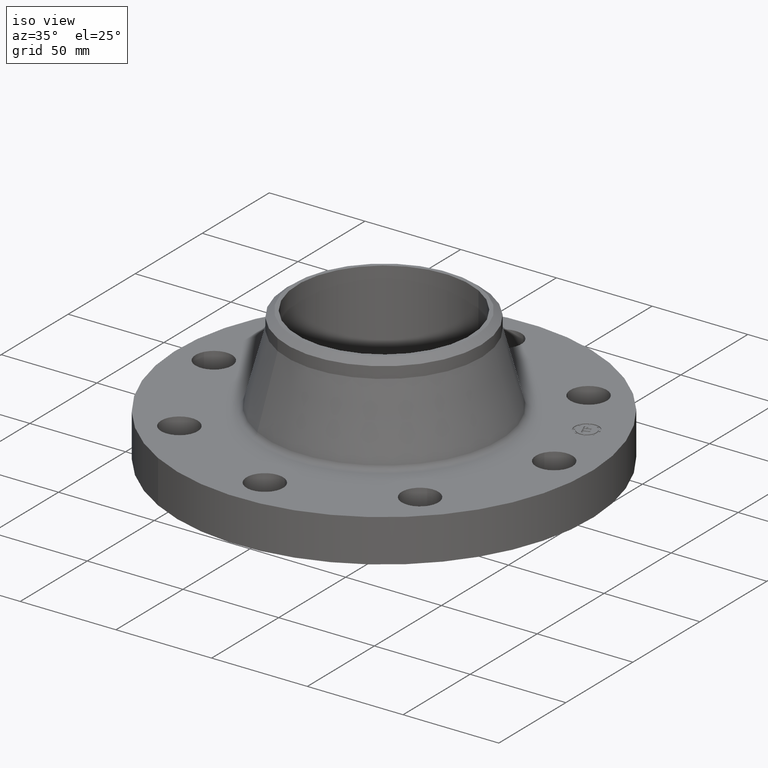
[diagram: clean part render]
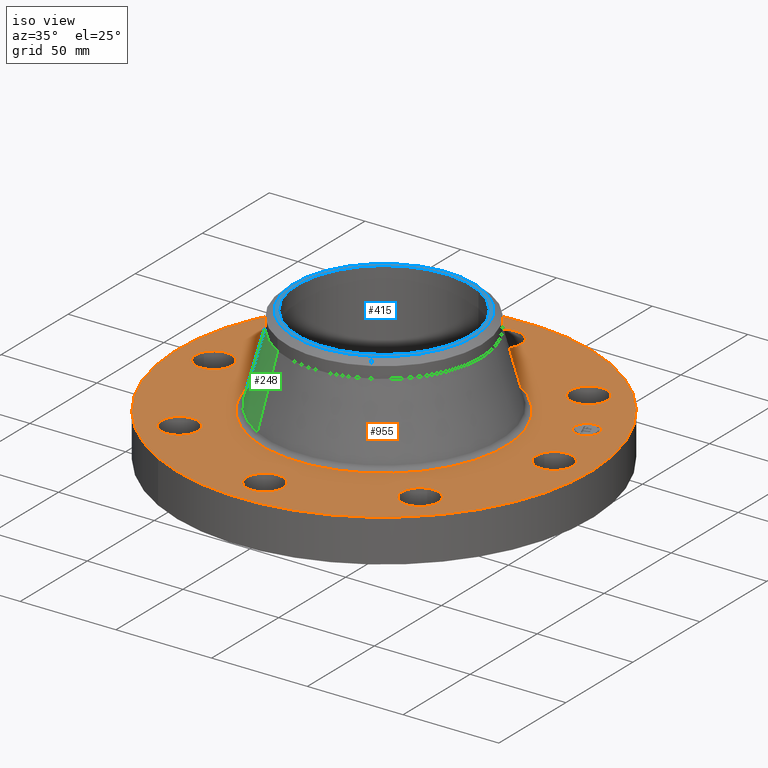
[diagram: same view with three faces highlighted in distinct colors, each labeled with its STEP entity id]
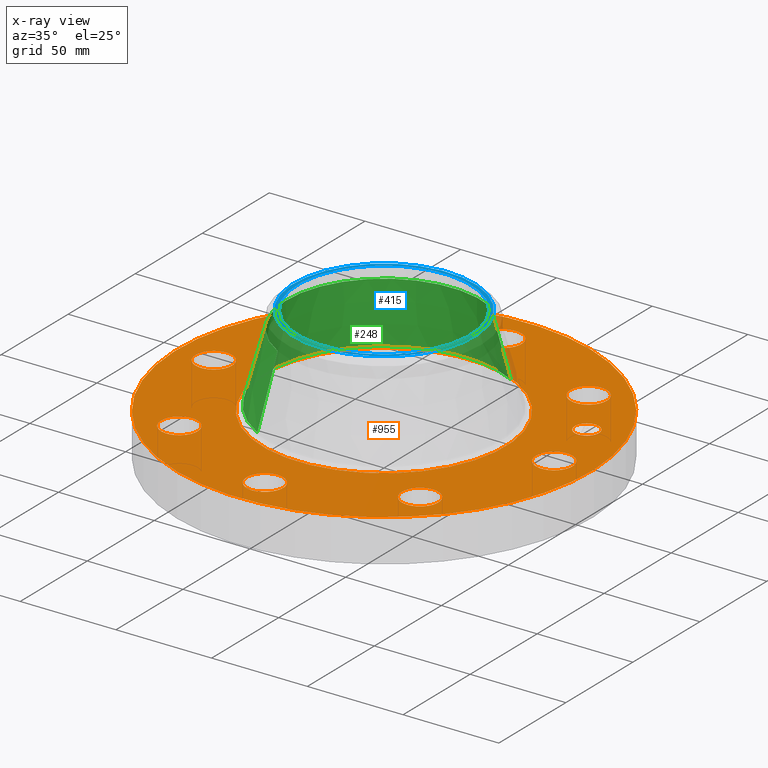
[diagram: x-ray of the same camera — body ghosted, the three highlighted faces saturated]
A machine part, iso view with three faces highlighted in distinct colors.
The next image is the same camera in x-ray (body ghosted, the three faces saturated) — at least one of them is partly hidden behind the body in this view.
Their STEP definitions:

[orange] entity #955 — the highlighted planar face has unit normal (0, 0, -1).
#65=AXIS2_PLACEMENT_3D('Circle Axis2P3D',#63,#64,$) ;
#82=AXIS2_PLACEMENT_3D('Circle Axis2P3D',#80,#81,$) ;
#115=AXIS2_PLACEMENT_3D('Circle Axis2P3D',#113,#114,$) ;
#139=AXIS2_PLACEMENT_3D('Circle Axis2P3D',#137,#138,$) ;
#156=AXIS2_PLACEMENT_3D('Circle Axis2P3D',#154,#155,$) ;
#191=AXIS2_PLACEMENT_3D('Circle Axis2P3D',#189,#190,$) ;
#612=AXIS2_PLACEMENT_3D('Circle Axis2P3D',#610,#611,$) ;
#624=AXIS2_PLACEMENT_3D('Circle Axis2P3D',#622,#623,$) ;
#655=AXIS2_PLACEMENT_3D('Circle Axis2P3D',#653,#654,$) ;
#667=AXIS2_PLACEMENT_3D('Circle Axis2P3D',#665,#666,$) ;
#698=AXIS2_PLACEMENT_3D('Circle Axis2P3D',#696,#697,$) ;
#710=AXIS2_PLACEMENT_3D('Circle Axis2P3D',#708,#709,$) ;
#741=AXIS2_PLACEMENT_3D('Circle Axis2P3D',#739,#740,$) ;
#753=AXIS2_PLACEMENT_3D('Circle Axis2P3D',#751,#752,$) ;
#784=AXIS2_PLACEMENT_3D('Circle Axis2P3D',#782,#783,$) ;
#796=AXIS2_PLACEMENT_3D('Circle Axis2P3D',#794,#795,$) ;
#827=AXIS2_PLACEMENT_3D('Circle Axis2P3D',#825,#826,$) ;
#839=AXIS2_PLACEMENT_3D('Circle Axis2P3D',#837,#838,$) ;
#870=AXIS2_PLACEMENT_3D('Circle Axis2P3D',#868,#869,$) ;
#882=AXIS2_PLACEMENT_3D('Circle Axis2P3D',#880,#881,$) ;
#895=AXIS2_PLACEMENT_3D('Plane Axis2P3D',#892,#893,#894) ;
#939=AXIS2_PLACEMENT_3D('Circle Axis2P3D',#937,#938,$) ;
#948=AXIS2_PLACEMENT_3D('Circle Axis2P3D',#946,#947,$) ;
#46=CARTESIAN_POINT('Vertex',(3.1709065393,0.179784576977,0.880000000004)) ;
#60=CARTESIAN_POINT('Vertex',(3.82909346072,-0.179784576977,0.880000000004)) ;
#63=CARTESIAN_POINT('Axis2P3D Location',(3.50000000001,0.,0.880000000004)) ;
#80=CARTESIAN_POINT('Axis2P3D Location',(3.50000000001,0.,0.880000000004)) ;
#110=CARTESIAN_POINT('Vertex',(-2.03755853908,-3.72972588805,0.880000000004)) ;
#113=CARTESIAN_POINT('Axis2P3D Location',(0.,0.,0.880000000004)) ;
#117=CARTESIAN_POINT('Vertex',(2.03755853908,3.72972588805,0.880000000004)) ;
#137=CARTESIAN_POINT('Axis2P3D Location',(0.,0.,0.880000000004)) ;
#154=CARTESIAN_POINT('Axis2P3D Location',(0.,0.,0.880000000004)) ;
#158=CARTESIAN_POINT('Vertex',(1.19723351799,2.19152125469,0.880000000004)) ;
#160=CARTESIAN_POINT('Vertex',(-1.19723351799,-2.19152125469,0.880000000004)) ;
#189=CARTESIAN_POINT('Axis2P3D Location',(0.,0.,0.880000000004)) ;
#600=CARTESIAN_POINT('Vertex',(-2.36929640998,2.11504262292,0.880000000004)) ;
#607=CARTESIAN_POINT('Vertex',(-2.58045105834,2.83470484541,0.880000000004)) ;
#610=CARTESIAN_POINT('Axis2P3D Location',(-2.47487373416,2.47487373416,0.880000000004)) ;
#622=CARTESIAN_POINT('Axis2P3D Location',(-2.47487373416,2.47487373416,0.880000000004)) ;
#643=CARTESIAN_POINT('Vertex',(0.179784576977,-3.1709065393,0.880000000004)) ;
#650=CARTESIAN_POINT('Vertex',(-0.179784576977,-3.82909346072,0.880000000004)) ;
#653=CARTESIAN_POINT('Axis2P3D Location',(-3.45169279251E-016,-3.50000000001,0.880000000004)) ;
#665=CARTESIAN_POINT('Axis2P3D Location',(-3.45169279251E-016,-3.50000000001,0.880000000004)) ;
#686=CARTESIAN_POINT('Vertex',(-0.179784576977,3.1709065393,0.880000000004)) ;
#693=CARTESIAN_POINT('Vertex',(0.179784576977,3.82909346072,0.880000000004)) ;
#696=CARTESIAN_POINT('Axis2P3D Location',(-6.42939569555E-016,3.50000000001,0.880000000004)) ;
#708=CARTESIAN_POINT('Axis2P3D Location',(-6.42939569555E-016,3.50000000001,0.880000000004)) ;
#729=CARTESIAN_POINT('Vertex',(-2.11504262292,-2.36929640998,0.880000000004)) ;
#736=CARTESIAN_POINT('Vertex',(-2.83470484541,-2.58045105834,0.880000000004)) ;
#739=CARTESIAN_POINT('Axis2P3D Location',(-2.47487373416,-2.47487373416,0.880000000004)) ;
#751=CARTESIAN_POINT('Axis2P3D Location',(-2.47487373416,-2.47487373416,0.880000000004)) ;
#772=CARTESIAN_POINT('Vertex',(2.11504262292,2.36929640998,0.880000000004)) ;
#779=CARTESIAN_POINT('Vertex',(2.83470484541,2.58045105834,0.880000000004)) ;
#782=CARTESIAN_POINT('Axis2P3D Location',(2.47487373416,2.47487373416,0.880000000004)) ;
#794=CARTESIAN_POINT('Axis2P3D Location',(2.47487373416,2.47487373416,0.880000000004)) ;
#815=CARTESIAN_POINT('Vertex',(-3.1709065393,-0.179784576977,0.880000000004)) ;
#822=CARTESIAN_POINT('Vertex',(-3.82909346072,0.179784576977,0.880000000004)) ;
#825=CARTESIAN_POINT('Axis2P3D Location',(-3.50000000001,-4.28626379703E-016,0.880000000004)) ;
#837=CARTESIAN_POINT('Axis2P3D Location',(-3.50000000001,-4.28626379703E-016,0.880000000004)) ;
#858=CARTESIAN_POINT('Vertex',(2.36929640998,-2.11504262292,0.880000000004)) ;
#865=CARTESIAN_POINT('Vertex',(2.58045105834,-2.83470484541,0.880000000004)) ;
#868=CARTESIAN_POINT('Axis2P3D Location',(2.47487373416,-2.47487373416,0.880000000004)) ;
#880=CARTESIAN_POINT('Axis2P3D Location',(2.47487373416,-2.47487373416,0.880000000004)) ;
#892=CARTESIAN_POINT('Axis2P3D Location',(0.,4.25000000002,0.880000000004)) ;
#937=CARTESIAN_POINT('Axis2P3D Location',(3.2335783638,1.33939201328,0.880000000004)) ;
#941=CARTESIAN_POINT('Vertex',(3.13886421429,1.56805219758,0.880000000004)) ;
#943=CARTESIAN_POINT('Vertex',(3.32829251331,1.11073182899,0.880000000004)) ;
#946=CARTESIAN_POINT('Axis2P3D Location',(3.2335783638,1.33939201328,0.880000000004)) ;
#64=DIRECTION('Axis2P3D Direction',(0.,-0.,-0.0393700787402)) ;
#81=DIRECTION('Axis2P3D Direction',(0.,-0.,-0.0393700787402)) ;
#114=DIRECTION('Axis2P3D Direction',(0.,0.,-0.0393700787402)) ;
#138=DIRECTION('Axis2P3D Direction',(0.,0.,-0.0393700787402)) ;
#155=DIRECTION('Axis2P3D Direction',(0.,0.,-0.0393700787402)) ;
#190=DIRECTION('Axis2P3D Direction',(0.,0.,-0.0393700787402)) ;
#611=DIRECTION('Axis2P3D Direction',(0.,0.,-0.0393700787402)) ;
#623=DIRECTION('Axis2P3D Direction',(0.,0.,-0.0393700787402)) ;
#654=DIRECTION('Axis2P3D Direction',(0.,-0.,-0.0393700787402)) ;
#666=DIRECTION('Axis2P3D Direction',(0.,-0.,-0.0393700787402)) ;
#697=DIRECTION('Axis2P3D Direction',(0.,0.,-0.0393700787402)) ;
#709=DIRECTION('Axis2P3D Direction',(0.,0.,-0.0393700787402)) ;
#740=DIRECTION('Axis2P3D Direction',(-0.,0.,-0.0393700787402)) ;
#752=DIRECTION('Axis2P3D Direction',(-0.,0.,-0.0393700787402)) ;
#783=DIRECTION('Axis2P3D Direction',(0.,0.,-0.0393700787402)) ;
#795=DIRECTION('Axis2P3D Direction',(0.,0.,-0.0393700787402)) ;
#826=DIRECTION('Axis2P3D Direction',(-0.,0.,-0.0393700787402)) ;
#838=DIRECTION('Axis2P3D Direction',(-0.,0.,-0.0393700787402)) ;
#869=DIRECTION('Axis2P3D Direction',(0.,-0.,-0.0393700787402)) ;
#881=DIRECTION('Axis2P3D Direction',(0.,-0.,-0.0393700787402)) ;
#893=DIRECTION('Axis2P3D Direction',(0.,0.,-0.0393700787402)) ;
#894=DIRECTION('Axis2P3D XDirection',(0.0393700787402,0.,0.)) ;
#938=DIRECTION('Axis2P3D Direction',(0.,0.,-0.0393700787402)) ;
#947=DIRECTION('Axis2P3D Direction',(0.,0.,-0.0393700787402)) ;
#898=ORIENTED_EDGE('',*,*,#141,.F.) ;
#899=ORIENTED_EDGE('',*,*,#119,.F.) ;
#902=ORIENTED_EDGE('',*,*,#67,.T.) ;
#903=ORIENTED_EDGE('',*,*,#84,.T.) ;
#906=ORIENTED_EDGE('',*,*,#193,.T.) ;
#907=ORIENTED_EDGE('',*,*,#162,.T.) ;
#910=ORIENTED_EDGE('',*,*,#884,.T.) ;
#911=ORIENTED_EDGE('',*,*,#872,.T.) ;
#914=ORIENTED_EDGE('',*,*,#669,.T.) ;
#915=ORIENTED_EDGE('',*,*,#657,.T.) ;
#918=ORIENTED_EDGE('',*,*,#755,.T.) ;
#919=ORIENTED_EDGE('',*,*,#743,.T.) ;
#922=ORIENTED_EDGE('',*,*,#841,.T.) ;
#923=ORIENTED_EDGE('',*,*,#829,.T.) ;
#926=ORIENTED_EDGE('',*,*,#626,.T.) ;
#927=ORIENTED_EDGE('',*,*,#614,.T.) ;
#930=ORIENTED_EDGE('',*,*,#712,.T.) ;
#931=ORIENTED_EDGE('',*,*,#700,.T.) ;
#934=ORIENTED_EDGE('',*,*,#798,.T.) ;
#935=ORIENTED_EDGE('',*,*,#786,.T.) ;
#952=ORIENTED_EDGE('',*,*,#945,.T.) ;
#953=ORIENTED_EDGE('',*,*,#950,.T.) ;
#904=FACE_BOUND('',#901,.T.) ;
#908=FACE_BOUND('',#905,.T.) ;
#912=FACE_BOUND('',#909,.T.) ;
#916=FACE_BOUND('',#913,.T.) ;
#920=FACE_BOUND('',#917,.T.) ;
#924=FACE_BOUND('',#921,.T.) ;
#928=FACE_BOUND('',#925,.T.) ;
#932=FACE_BOUND('',#929,.T.) ;
#936=FACE_BOUND('',#933,.T.) ;
#954=FACE_BOUND('',#951,.T.) ;
#955=ADVANCED_FACE('PartBody',(#900,#904,#908,#912,#916,#920,#924,#928,#932,#936,#954),#896,.F.) ;
#66=CIRCLE('generated circle',#65,0.375000000002) ;
#83=CIRCLE('generated circle',#82,0.375000000002) ;
#116=CIRCLE('generated circle',#115,4.25000000002) ;
#140=CIRCLE('generated circle',#139,4.25000000002) ;
#157=CIRCLE('generated circle',#156,2.49722516133) ;
#192=CIRCLE('generated circle',#191,2.49722516133) ;
#613=CIRCLE('generated circle',#612,0.375000000002) ;
#625=CIRCLE('generated circle',#624,0.375000000002) ;
#656=CIRCLE('generated circle',#655,0.375000000002) ;
#668=CIRCLE('generated circle',#667,0.375000000002) ;
#699=CIRCLE('generated circle',#698,0.375000000002) ;
#711=CIRCLE('generated circle',#710,0.375000000002) ;
#742=CIRCLE('generated circle',#741,0.375000000002) ;
#754=CIRCLE('generated circle',#753,0.375000000002) ;
#785=CIRCLE('generated circle',#784,0.375000000002) ;
#797=CIRCLE('generated circle',#796,0.375000000002) ;
#828=CIRCLE('generated circle',#827,0.375000000001) ;
#840=CIRCLE('generated circle',#839,0.375000000001) ;
#871=CIRCLE('generated circle',#870,0.375000000002) ;
#883=CIRCLE('generated circle',#882,0.375000000002) ;
#940=CIRCLE('generated circle',#939,0.247500000001) ;
#949=CIRCLE('generated circle',#948,0.247500000001) ;
#67=EDGE_CURVE('',#47,#61,#66,.T.) ;
#84=EDGE_CURVE('',#61,#47,#83,.T.) ;
#119=EDGE_CURVE('',#111,#118,#116,.T.) ;
#141=EDGE_CURVE('',#118,#111,#140,.T.) ;
#162=EDGE_CURVE('',#159,#161,#157,.T.) ;
#193=EDGE_CURVE('',#161,#159,#192,.T.) ;
#614=EDGE_CURVE('',#601,#608,#613,.T.) ;
#626=EDGE_CURVE('',#608,#601,#625,.T.) ;
#657=EDGE_CURVE('',#644,#651,#656,.T.) ;
#669=EDGE_CURVE('',#651,#644,#668,.T.) ;
#700=EDGE_CURVE('',#687,#694,#699,.T.) ;
#712=EDGE_CURVE('',#694,#687,#711,.T.) ;
#743=EDGE_CURVE('',#730,#737,#742,.T.) ;
#755=EDGE_CURVE('',#737,#730,#754,.T.) ;
#786=EDGE_CURVE('',#773,#780,#785,.T.) ;
#798=EDGE_CURVE('',#780,#773,#797,.T.) ;
#829=EDGE_CURVE('',#816,#823,#828,.T.) ;
#841=EDGE_CURVE('',#823,#816,#840,.T.) ;
#872=EDGE_CURVE('',#859,#866,#871,.T.) ;
#884=EDGE_CURVE('',#866,#859,#883,.T.) ;
#945=EDGE_CURVE('',#942,#944,#940,.T.) ;
#950=EDGE_CURVE('',#944,#942,#949,.T.) ;
#897=EDGE_LOOP('',(#898,#899)) ;
#901=EDGE_LOOP('',(#902,#903)) ;
#905=EDGE_LOOP('',(#906,#907)) ;
#909=EDGE_LOOP('',(#910,#911)) ;
#913=EDGE_LOOP('',(#914,#915)) ;
#917=EDGE_LOOP('',(#918,#919)) ;
#921=EDGE_LOOP('',(#922,#923)) ;
#925=EDGE_LOOP('',(#926,#927)) ;
#929=EDGE_LOOP('',(#930,#931)) ;
#933=EDGE_LOOP('',(#934,#935)) ;
#951=EDGE_LOOP('',(#952,#953)) ;
#900=FACE_OUTER_BOUND('',#897,.T.) ;
#896=PLANE('',#895) ;
#47=VERTEX_POINT('',#46) ;
#61=VERTEX_POINT('',#60) ;
#111=VERTEX_POINT('',#110) ;
#118=VERTEX_POINT('',#117) ;
#159=VERTEX_POINT('',#158) ;
#161=VERTEX_POINT('',#160) ;
#601=VERTEX_POINT('',#600) ;
#608=VERTEX_POINT('',#607) ;
#644=VERTEX_POINT('',#643) ;
#651=VERTEX_POINT('',#650) ;
#687=VERTEX_POINT('',#686) ;
#694=VERTEX_POINT('',#693) ;
#730=VERTEX_POINT('',#729) ;
#737=VERTEX_POINT('',#736) ;
#773=VERTEX_POINT('',#772) ;
#780=VERTEX_POINT('',#779) ;
#816=VERTEX_POINT('',#815) ;
#823=VERTEX_POINT('',#822) ;
#859=VERTEX_POINT('',#858) ;
#866=VERTEX_POINT('',#865) ;
#942=VERTEX_POINT('',#941) ;
#944=VERTEX_POINT('',#943) ;

[blue] entity #415 — the highlighted planar face has unit normal (0, 0, -1).
#322=AXIS2_PLACEMENT_3D('Circle Axis2P3D',#320,#321,$) ;
#347=AXIS2_PLACEMENT_3D('Circle Axis2P3D',#345,#346,$) ;
#382=AXIS2_PLACEMENT_3D('Circle Axis2P3D',#380,#381,$) ;
#400=AXIS2_PLACEMENT_3D('Plane Axis2P3D',#397,#398,#399) ;
#404=AXIS2_PLACEMENT_3D('Circle Axis2P3D',#402,#403,$) ;
#317=CARTESIAN_POINT('Vertex',(0.888250947897,-1.62593245392,2.75000000001)) ;
#320=CARTESIAN_POINT('Axis2P3D Location',(0.,0.,2.75000000001)) ;
#324=CARTESIAN_POINT('Vertex',(-0.888250947897,1.62593245392,2.75000000001)) ;
#345=CARTESIAN_POINT('Axis2P3D Location',(0.,0.,2.75000000001)) ;
#349=CARTESIAN_POINT('Vertex',(-0.850500905487,-1.5568314648,2.75000000001)) ;
#351=CARTESIAN_POINT('Vertex',(0.850500905487,1.5568314648,2.75000000001)) ;
#380=CARTESIAN_POINT('Axis2P3D Location',(0.,0.,2.75000000001)) ;
#397=CARTESIAN_POINT('Axis2P3D Location',(0.,2.00000000001,2.75000000001)) ;
#402=CARTESIAN_POINT('Axis2P3D Location',(0.,0.,2.75000000001)) ;
#321=DIRECTION('Axis2P3D Direction',(0.,0.,-0.0393700787402)) ;
#346=DIRECTION('Axis2P3D Direction',(0.,0.,-0.0393700787402)) ;
#381=DIRECTION('Axis2P3D Direction',(0.,0.,-0.0393700787402)) ;
#398=DIRECTION('Axis2P3D Direction',(0.,0.,-0.0393700787402)) ;
#399=DIRECTION('Axis2P3D XDirection',(0.0393700787402,0.,0.)) ;
#403=DIRECTION('Axis2P3D Direction',(0.,0.,-0.0393700787402)) ;
#408=ORIENTED_EDGE('',*,*,#406,.T.) ;
#409=ORIENTED_EDGE('',*,*,#326,.T.) ;
#412=ORIENTED_EDGE('',*,*,#353,.T.) ;
#413=ORIENTED_EDGE('',*,*,#384,.T.) ;
#414=FACE_BOUND('',#411,.T.) ;
#415=ADVANCED_FACE('PartBody',(#410,#414),#401,.F.) ;
#323=CIRCLE('generated circle',#322,1.85274015749) ;
#348=CIRCLE('generated circle',#347,1.77400000001) ;
#383=CIRCLE('generated circle',#382,1.77400000001) ;
#405=CIRCLE('generated circle',#404,1.85274015749) ;
#326=EDGE_CURVE('',#325,#318,#323,.F.) ;
#353=EDGE_CURVE('',#350,#352,#348,.T.) ;
#384=EDGE_CURVE('',#352,#350,#383,.T.) ;
#406=EDGE_CURVE('',#318,#325,#405,.F.) ;
#407=EDGE_LOOP('',(#408,#409)) ;
#411=EDGE_LOOP('',(#412,#413)) ;
#410=FACE_OUTER_BOUND('',#407,.T.) ;
#401=PLANE('',#400) ;
#318=VERTEX_POINT('',#317) ;
#325=VERTEX_POINT('',#324) ;
#350=VERTEX_POINT('',#349) ;
#352=VERTEX_POINT('',#351) ;

[green] entity #248 — the highlighted conical surface has half-angle 14.912 deg.
#196=AXIS2_PLACEMENT_3D('Circle Axis2P3D',#194,#195,$) ;
#209=AXIS2_PLACEMENT_3D('Cone Axis2P3D',#206,#207,#208) ;
#239=AXIS2_PLACEMENT_3D('Circle Axis2P3D',#237,#238,$) ;
#167=CARTESIAN_POINT('Vertex',(1.14164006215,2.08975811638,0.969119077942)) ;
#174=CARTESIAN_POINT('Vertex',(-1.14164006215,-2.08975811638,0.969119077942)) ;
#194=CARTESIAN_POINT('Axis2P3D Location',(0.,0.,0.969119077942)) ;
#206=CARTESIAN_POINT('Axis2P3D Location',(0.,0.,2.40078307616)) ;
#211=CARTESIAN_POINT('Line Origine',(1.05024556968,1.92246162008,1.68495107705)) ;
#215=CARTESIAN_POINT('Vertex',(0.958851077212,1.75516512379,2.40078307616)) ;
#222=CARTESIAN_POINT('Vertex',(-0.958851077212,-1.75516512379,2.40078307616)) ;
#225=CARTESIAN_POINT('Line Origine',(-1.05024556968,-1.92246162008,1.68495107705)) ;
#237=CARTESIAN_POINT('Axis2P3D Location',(0.,0.,2.40078307616)) ;
#195=DIRECTION('Axis2P3D Direction',(0.,0.,-0.0393700787402)) ;
#207=DIRECTION('Axis2P3D Direction',(0.,0.,-0.0393700787402)) ;
#208=DIRECTION('Axis2P3D XDirection',(-0.0188750212049,-0.0345504945626,0.)) ;
#212=DIRECTION('Vector Direction',(0.00485731715613,0.00889125941476,-0.0380441201248)) ;
#226=DIRECTION('Vector Direction',(-0.00485731715613,-0.00889125941476,-0.0380441201248)) ;
#238=DIRECTION('Axis2P3D Direction',(0.,0.,-0.0393700787402)) ;
#213=VECTOR('Line Direction',#212,0.0393700787402) ;
#227=VECTOR('Line Direction',#226,0.0393700787402) ;
#243=ORIENTED_EDGE('',*,*,#198,.F.) ;
#244=ORIENTED_EDGE('',*,*,#229,.T.) ;
#245=ORIENTED_EDGE('',*,*,#241,.T.) ;
#246=ORIENTED_EDGE('',*,*,#217,.F.) ;
#248=ADVANCED_FACE('PartBody',(#247),#210,.T.) ;
#197=CIRCLE('generated circle',#196,2.38126668319) ;
#240=CIRCLE('generated circle',#239,2.00000000001) ;
#210=CONICAL_SURFACE('Cone',#209,2.00000000001,0.26026953366) ;
#198=EDGE_CURVE('',#175,#168,#197,.T.) ;
#217=EDGE_CURVE('',#168,#216,#214,.F.) ;
#229=EDGE_CURVE('',#175,#223,#228,.F.) ;
#241=EDGE_CURVE('',#223,#216,#240,.T.) ;
#242=EDGE_LOOP('',(#243,#244,#245,#246)) ;
#247=FACE_OUTER_BOUND('',#242,.T.) ;
#214=LINE('Line',#211,#213) ;
#228=LINE('Line',#225,#227) ;
#168=VERTEX_POINT('',#167) ;
#175=VERTEX_POINT('',#174) ;
#216=VERTEX_POINT('',#215) ;
#223=VERTEX_POINT('',#222) ;